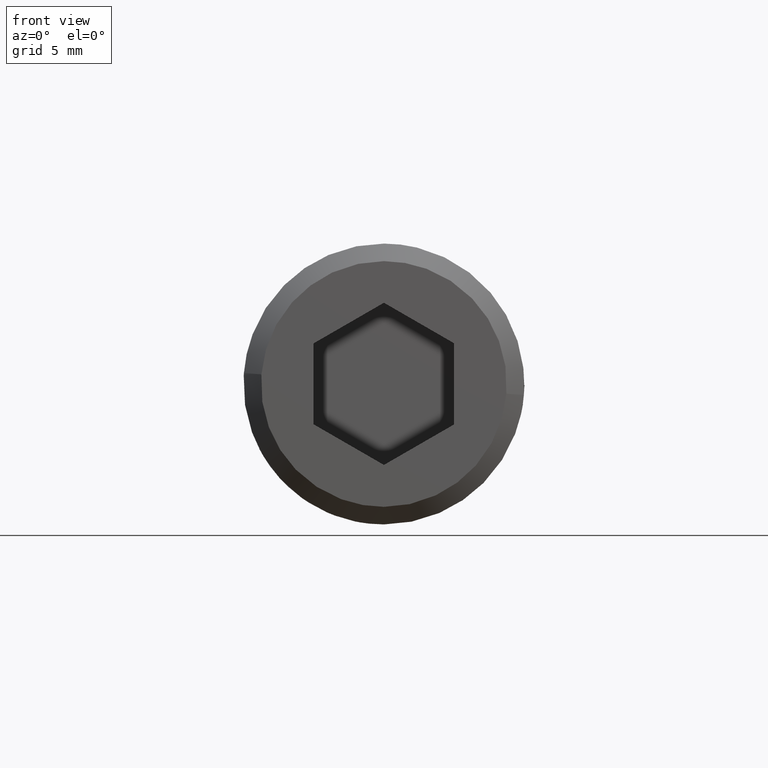
[diagram: clean part render]
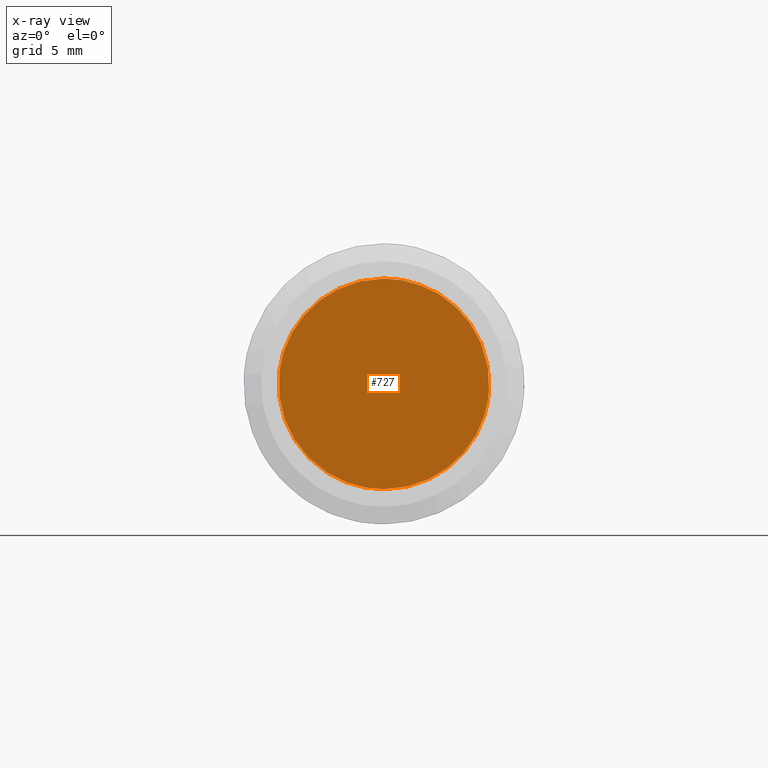
[diagram: x-ray — body ghosted, one internal face saturated and labeled with its STEP entity id]
A machine part, front view, then the same camera in x-ray: the body is ghosted and one INTERNAL B-rep face — a face not visible from any outside direction — is saturated and labeled: STEP entity #727.
In plain terms, the highlighted face is a freeform B-spline surface patch.
Its self-contained STEP definition (entity closure, byte-faithful):
#66=CARTESIAN_POINT('',(-5.958058204760654,-8.999999999999954,0.708196603074040));
#67=VERTEX_POINT('',#66);
#68=CARTESIAN_POINT('',(0.0,-9.0,-6.0));
#69=VERTEX_POINT('',#68);
#70=CARTESIAN_POINT('',(-5.958058204760655,-8.999999999999954,0.708196603074040));
#71=CARTESIAN_POINT('',(-6.000000000000001,-8.999999999999998,0.355340268937219));
#72=CARTESIAN_POINT('',(-6.0,-9.0,0.0));
#73=CARTESIAN_POINT('',(-6.0,-9.000000000000002,-6.0));
#74=CARTESIAN_POINT('',(0.0,-9.0,-6.0));
#82=(BOUNDED_CURVE()B_SPLINE_CURVE(2,(#70,#71,#72,#73,#74),.UNSPECIFIED.,.F.,.U.)B_SPLINE_CURVE_WITH_KNOTS((3,2,3),(0.229562723270076,0.250000000000000,0.500000000000000),.UNSPECIFIED.)CURVE()GEOMETRIC_REPRESENTATION_ITEM()RATIONAL_B_SPLINE_CURVE((0.956027243717377,0.976056240939165,1.0,0.707106781186548,1.0))REPRESENTATION_ITEM(''));
#83=EDGE_CURVE('',#67,#69,#82,.T.);
#85=CARTESIAN_POINT('',(5.988808964275070,-9.000000000000009,-0.366288396499877));
#86=VERTEX_POINT('',#85);
#87=CARTESIAN_POINT('',(0.0,-9.0,-6.0));
#88=CARTESIAN_POINT('',(5.644239083703742,-9.000000000000002,-6.000000000000001));
#89=CARTESIAN_POINT('',(5.988808964275071,-9.000000000000011,-0.366288396499877));
#97=(BOUNDED_CURVE()B_SPLINE_CURVE(2,(#87,#88,#89),.UNSPECIFIED.,.F.,.U.)B_SPLINE_CURVE_WITH_KNOTS((3,3),(0.500000000000000,0.739333044087175),.UNSPECIFIED.)CURVE()GEOMETRIC_REPRESENTATION_ITEM()RATIONAL_B_SPLINE_CURVE((1.0,0.719603897395541,0.976072217083123))REPRESENTATION_ITEM(''));
#98=EDGE_CURVE('',#69,#86,#97,.T.);
#169=CARTESIAN_POINT('',(0.0,-9.0,6.0));
#170=VERTEX_POINT('',#169);
#171=CARTESIAN_POINT('',(0.0,-9.0,6.0));
#172=CARTESIAN_POINT('',(-5.329055086462003,-9.0,6.0));
#173=CARTESIAN_POINT('',(-5.958058204760655,-8.999999999999954,0.708196603074040));
#181=(BOUNDED_CURVE()B_SPLINE_CURVE(2,(#171,#172,#173),.UNSPECIFIED.,.F.,.U.)B_SPLINE_CURVE_WITH_KNOTS((3,3),(0.0,0.229562723270076),.UNSPECIFIED.)CURVE()GEOMETRIC_REPRESENTATION_ITEM()RATIONAL_B_SPLINE_CURVE((1.0,0.731050540247383,0.956027243717377))REPRESENTATION_ITEM(''));
#182=EDGE_CURVE('',#170,#67,#181,.T.);
#216=CARTESIAN_POINT('',(5.988808964275071,-9.000000000000011,-0.366288396499877));
#217=CARTESIAN_POINT('',(6.0,-9.0,-0.183315155454417));
#218=CARTESIAN_POINT('',(6.0,-9.0,0.0));
#219=CARTESIAN_POINT('',(6.0,-9.000000000000002,6.0));
#220=CARTESIAN_POINT('',(0.0,-9.0,6.0));
#228=(BOUNDED_CURVE()B_SPLINE_CURVE(2,(#216,#217,#218,#219,#220),.UNSPECIFIED.,.F.,.U.)B_SPLINE_CURVE_WITH_KNOTS((3,2,3),(0.739333044087175,0.750000000000000,1.0),.UNSPECIFIED.)CURVE()GEOMETRIC_REPRESENTATION_ITEM()RATIONAL_B_SPLINE_CURVE((0.976072217083123,0.987502883791006,1.0,0.707106781186548,1.0))REPRESENTATION_ITEM(''));
#229=EDGE_CURVE('',#86,#170,#228,.T.);
#716=CARTESIAN_POINT('',(-6.599291187213046,-9.0,6.599399976741672));
#717=CARTESIAN_POINT('',(6.599253958151921,-9.0,6.599399976741672));
#718=CARTESIAN_POINT('',(-6.599291187213046,-9.0,-6.599400298606753));
#719=CARTESIAN_POINT('',(6.599253958151921,-9.0,-6.599400298606753));
#720=B_SPLINE_SURFACE_WITH_KNOTS('',1,1,((#716,#718),(#717,#719)),.UNSPECIFIED.,.F.,.F.,.U.,(2,2),(2,2),(0.0,13.198545145364969),(0.0,13.198800275348431),.UNSPECIFIED.);
#721=ORIENTED_EDGE('',*,*,#229,.F.);
#722=ORIENTED_EDGE('',*,*,#98,.F.);
#723=ORIENTED_EDGE('',*,*,#83,.F.);
#724=ORIENTED_EDGE('',*,*,#182,.F.);
#725=EDGE_LOOP('',(#721,#722,#723,#724));
#726=FACE_OUTER_BOUND('',#725,.T.);
#727=ADVANCED_FACE('',(#726),#720,.T.);